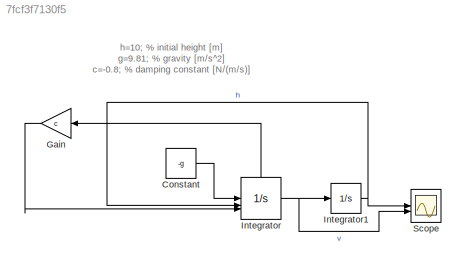
MODEL slx_7fcf3f7130f5
KIND model
CONFIG AbsTol = auto
CONFIG EnableMultiTasking = off
CONFIG FixedStep = auto
CONFIG MaxStep = auto
CONFIG MinStep = auto
CONFIG RelTol = 1e-3
CONFIG SampleTimeConstraint = Unconstrained
CONFIG SolverName = VariableStepAuto
CONFIG StartTime = 0.0
CONFIG StopTime = 10
BLOCK [Constant] Constant
  Value = -g
BLOCK [Gain] Gain
  Gain = c
  NameLocation = top
BLOCK [Integrator] Integrator
  ExternalReset = falling
  InitialConditionSource = external
  ShowStatePort = on
BLOCK [Integrator] Integrator1
  InitialCondition = h
BLOCK [Scope] Scope
  Floating = off
  NumInputPorts = 2
  ScopeSpecificationString = Simulink.scopes.TimeScopeBlockCfg('CurrentConfiguration', extmgr.ConfigurationSet(extmgr.Configuration('Core','General UI',true),extmgr.Configuration('Core','Source UI',true),extmgr.Configuration('Sources','WiredSimulink',true),extmgr.Configuration('Visuals','Time Domain',true,'SerializedDisplays',{struct('MinYLimReal','-17.15875','MaxYLimReal','14.35732','YLabelReal','','MinYLimMag','0.00000','Ma...<+1486ch>
ANNOTATION (root): h=10; % initial height [m] g=9.81; % gravity [m/s^2] c=-0.8; % damping constant [N/(m/s)]
LINE Constant:1 -> Integrator:1
LINE Gain:1 -> Integrator:3
NET Integrator1:1 -> Integrator:2, Scope:1
NET Integrator:1 -> Integrator1:1, Scope:2
LINE Integrator:state -> Gain:1
note: NET lines group one-source signal fan-out (src -> all destinations, sorted); 1:1 wires keep LINE
